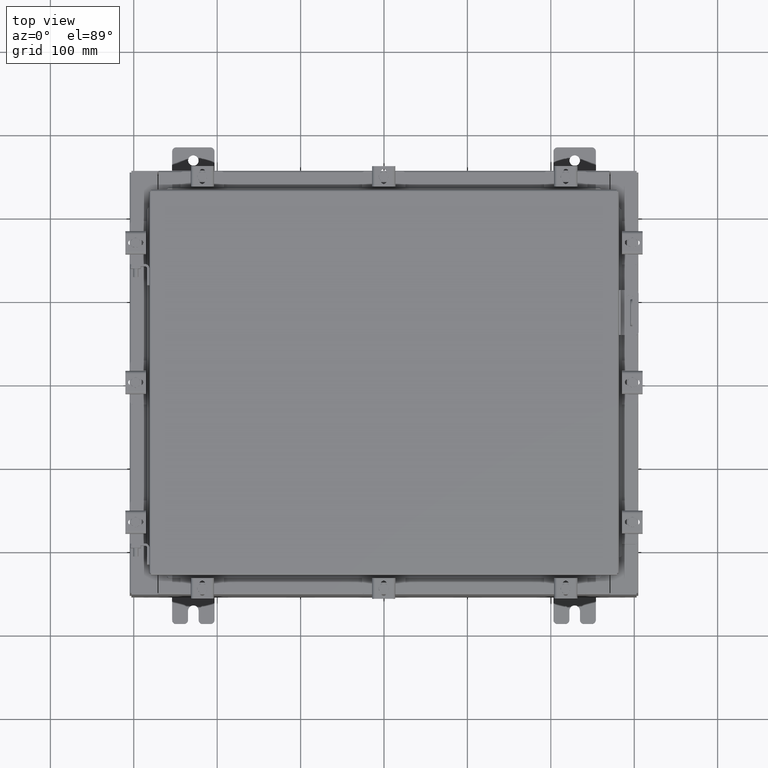
[diagram: clean part render]
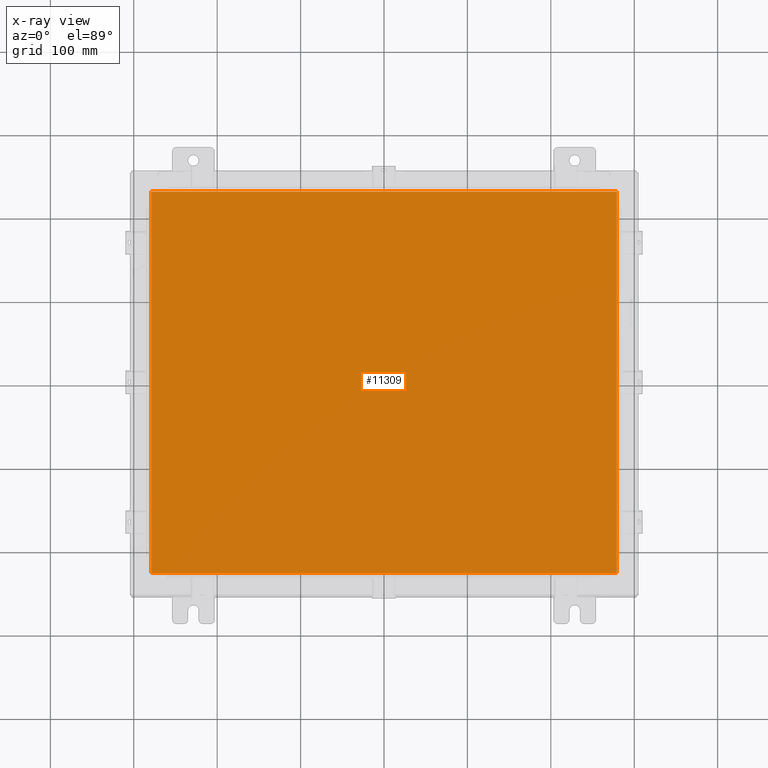
[diagram: x-ray — body ghosted, one internal face saturated and labeled with its STEP entity id]
A machine part, top view, then the same camera in x-ray: the body is ghosted and one INTERNAL B-rep face — a face not visible from any outside direction — is saturated and labeled: STEP entity #11309.
In plain terms, the highlighted planar face has unit normal (0, 0, -1).
Its self-contained STEP definition (entity closure, byte-faithful):
#63 = CARTESIAN_POINT ( 'NONE',  ( -10.99029999999999800, 9.006300000000001300, -0.07470000000000019700 ) ) ;
#584 = DIRECTION ( 'NONE',  ( 0.0000000000000000000, 1.000000000000000000, 0.0000000000000000000 ) ) ;
#714 = ORIENTED_EDGE ( 'NONE', *, *, #13678, .F. ) ;
#785 = VERTEX_POINT ( 'NONE', #18615 ) ;
#1477 = LINE ( 'NONE', #21470, #10211 ) ;
#2211 = CARTESIAN_POINT ( 'NONE',  ( 10.99030000000000100, 9.006300000000001300, -0.07470000000000000300 ) ) ;
#2571 = CARTESIAN_POINT ( 'NONE',  ( -10.99029999999999800, -9.006299999999997800, -0.07470000000000019700 ) ) ;
#2838 = LINE ( 'NONE', #3605, #11591 ) ;
#3001 = DIRECTION ( 'NONE',  ( -1.000000000000000000, 0.0000000000000000000, -0.0000000000000000000 ) ) ;
#3605 = CARTESIAN_POINT ( 'NONE',  ( 10.99030000000000100, 9.006300000000001300, -0.07470000000000073800 ) ) ;
#4327 = DIRECTION ( 'NONE',  ( 1.000000000000000000, -0.0000000000000000000, -0.0000000000000000000 ) ) ;
#4558 = LINE ( 'NONE', #2571, #13303 ) ;
#7542 = EDGE_CURVE ( 'NONE', #9278, #7915, #4558, .T. ) ;
#7915 = VERTEX_POINT ( 'NONE', #14012 ) ;
#8327 = FACE_OUTER_BOUND ( 'NONE', #8857, .T. ) ;
#8857 = EDGE_LOOP ( 'NONE', ( #13054, #15586, #714, #15316 ) ) ;
#9278 = VERTEX_POINT ( 'NONE', #22303 ) ;
#9443 = EDGE_CURVE ( 'NONE', #18833, #785, #2838, .T. ) ;
#10211 = VECTOR ( 'NONE', #584, 39.37007874015748100 ) ;
#11309 = ADVANCED_FACE ( 'NONE', ( #8327 ), #11722, .T. ) ;
#11591 = VECTOR ( 'NONE', #20984, 39.37007874015748100 ) ;
#11718 = CARTESIAN_POINT ( 'NONE',  ( 0.0000000000000000000, 0.0000000000000000000, -0.07470000000000000300 ) ) ;
#11722 = PLANE ( 'NONE',  #21103 ) ;
#11788 = LINE ( 'NONE', #63, #20490 ) ;
#13054 = ORIENTED_EDGE ( 'NONE', *, *, #22323, .F. ) ;
#13303 = VECTOR ( 'NONE', #4327, 39.37007874015748100 ) ;
#13465 = DIRECTION ( 'NONE',  ( 0.0000000000000000000, 0.0000000000000000000, -1.000000000000000000 ) ) ;
#13678 = EDGE_CURVE ( 'NONE', #785, #9278, #11788, .T. ) ;
#14012 = CARTESIAN_POINT ( 'NONE',  ( 10.99030000000000100, -9.006299999999997800, -0.07470000000000000300 ) ) ;
#15316 = ORIENTED_EDGE ( 'NONE', *, *, #9443, .F. ) ;
#15586 = ORIENTED_EDGE ( 'NONE', *, *, #7542, .F. ) ;
#15761 = DIRECTION ( 'NONE',  ( 0.0000000000000000000, -1.000000000000000000, 0.0000000000000000000 ) ) ;
#18615 = CARTESIAN_POINT ( 'NONE',  ( -10.99029999999999800, 9.006299999999999500, -0.07470000000000000300 ) ) ;
#18833 = VERTEX_POINT ( 'NONE', #2211 ) ;
#20490 = VECTOR ( 'NONE', #15761, 39.37007874015748100 ) ;
#20984 = DIRECTION ( 'NONE',  ( -1.000000000000000000, -0.0000000000000000000, -0.0000000000000000000 ) ) ;
#21103 = AXIS2_PLACEMENT_3D ( 'NONE', #11718, #13465, #3001 ) ;
#21470 = CARTESIAN_POINT ( 'NONE',  ( 10.99030000000000100, -9.006299999999997800, -0.07470000000000019700 ) ) ;
#22303 = CARTESIAN_POINT ( 'NONE',  ( -10.99029999999999800, -9.006299999999997800, -0.07470000000000000300 ) ) ;
#22323 = EDGE_CURVE ( 'NONE', #7915, #18833, #1477, .T. ) ;